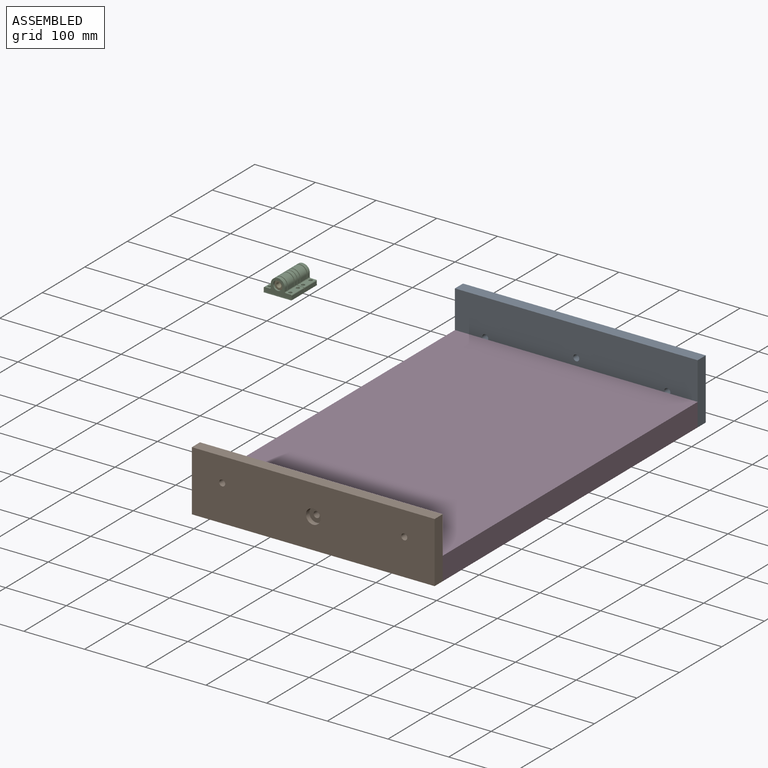
[diagram: assembled view]
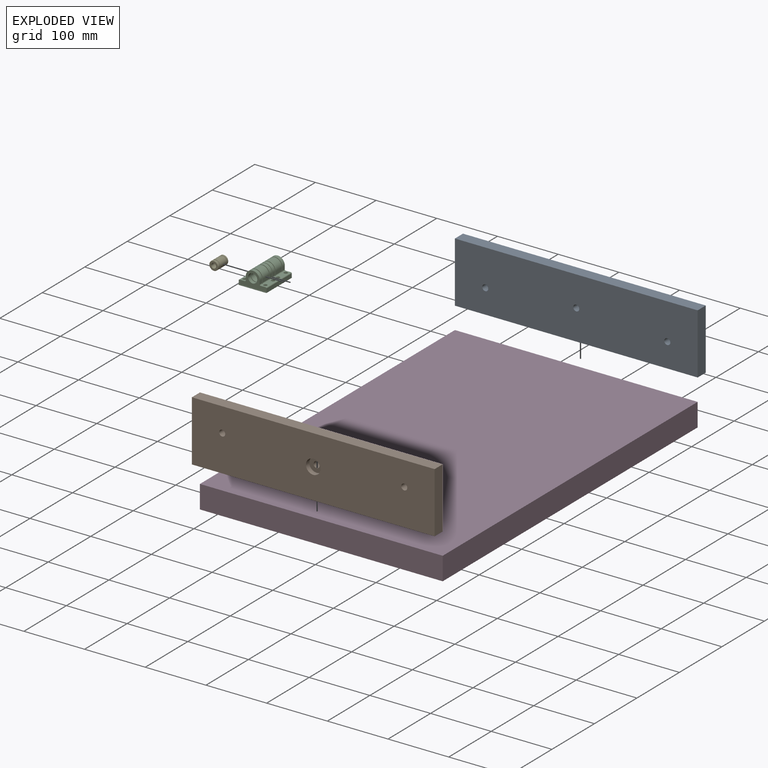
[diagram: exploded view]
GUIDED TOUR — MATED ASSEMBLY (Onshape document 6166882380b43132c298e821, AutoMate assembly 6166882380b43132c298e821_aef378e9cac27895e10c5213_9315c864bf5256e8a8b74294_default)

This assembly has 5 components, labeled P0..P4 below (a component is one placed occurrence of a part; the same part can appear more than once), held together by 7 mates. A mate is a constraint between two components; its type names the relative motion it leaves free:
  CYLINDRICAL — leaves both rotation about and translation along the listed axis free,
  PLANAR — leaves sliding in the plane through the listed point (normal = the listed direction) and rotation about that normal free.
Axis/direction vectors are unit vectors and 'through' points are millimeter coordinates, both in the assembly's world frame.

MATES
  1. PLANAR "Planar 4": P3 <-> P1, direction (0.000, 0.000, -1.000) through (186.77, 233.18, 56.05) mm
  2. CYLINDRICAL "Cylindrical 1": P4 <-> P2, axis (0.000, -1.000, 0.000) through (-55.90, 191.72, 284.49) mm
  3. PLANAR "Planar 3": P0 <-> P3, direction (0.000, 0.000, -1.000) through (186.77, 542.68, 56.05) mm
  4. PLANAR "Planar 5": P3 <-> P1, direction (1.000, 0.000, 0.000) through (386.77, 233.18, 75.05) mm
  5. PLANAR "Planar 2": P3 <-> P0, direction (1.000, 0.000, 0.000) through (386.77, 533.18, 75.05) mm
  6. PLANAR "Planar 6": P3 <-> P1, direction (0.000, -1.000, 0.000) through (186.77, -66.82, 75.05) mm
  7. PLANAR "Planar 1": P0 <-> P3, direction (0.000, -1.000, 0.000) through (186.77, 533.18, 56.05) mm

ASSEMBLY ORDER
  1. P2 — the base component [order heuristic]
  2. P4 — core [order heuristic]
  3. P3 [order verified]
  4. P0 [order verified]
  5. P1 [order verified]
Order-tag legend:
  [order verified] — this step's position reverses a verified removal order: the component was checked to insert without passing through the ones already placed.
  [order heuristic] — the first 2 components form the assembly's core: parts whose collision-free extraction could not be verified, listed in mate-graph order.

Of the 5 components, 1 carries the full construction recipe — the FeatureScript program that regenerates the part's solid from scratch; the rest are supplied as boundary geometry only.
Each toured component is shown spotlighted twice — in the assembled view, then in the exploded view, where a leader line traces a displaced component back to its assembled socket (saturated green if recipe-attached, orange if geometry-only; every other component desaturated gray) — followed by its recipe or geometry summary and the mates that hold it.
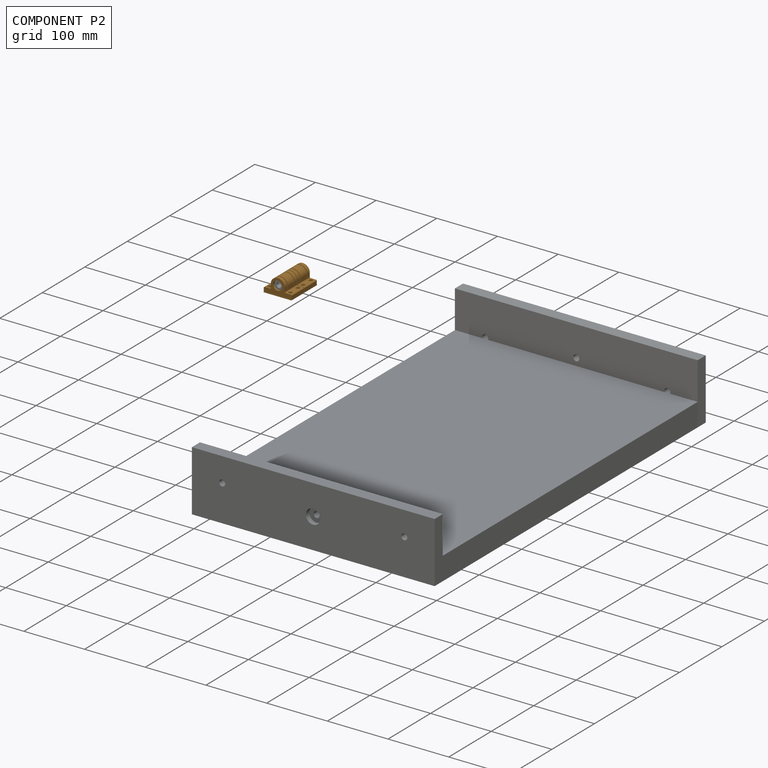
[diagram: component P2 — assembled]
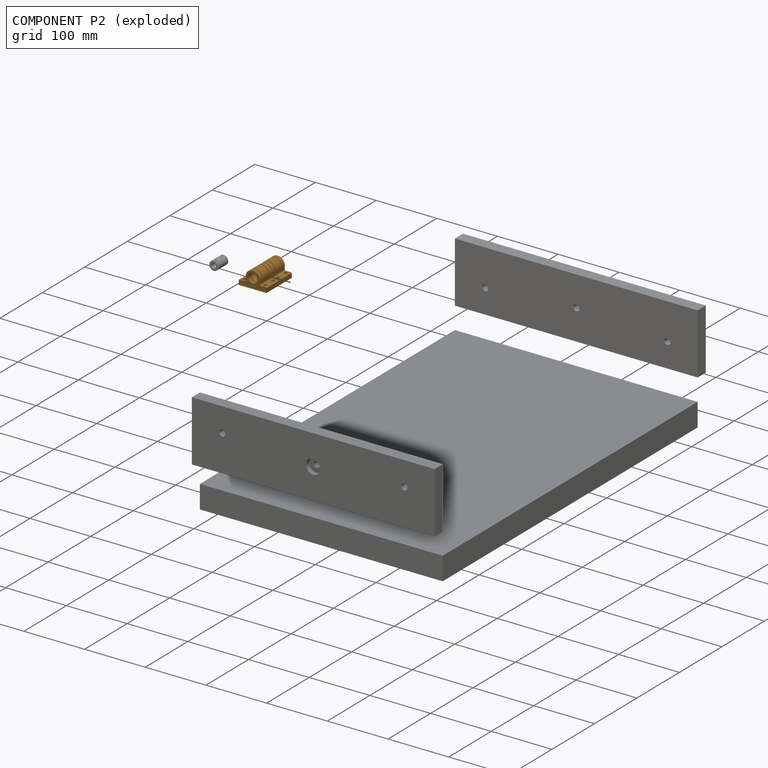
[diagram: component P2 — exploded]
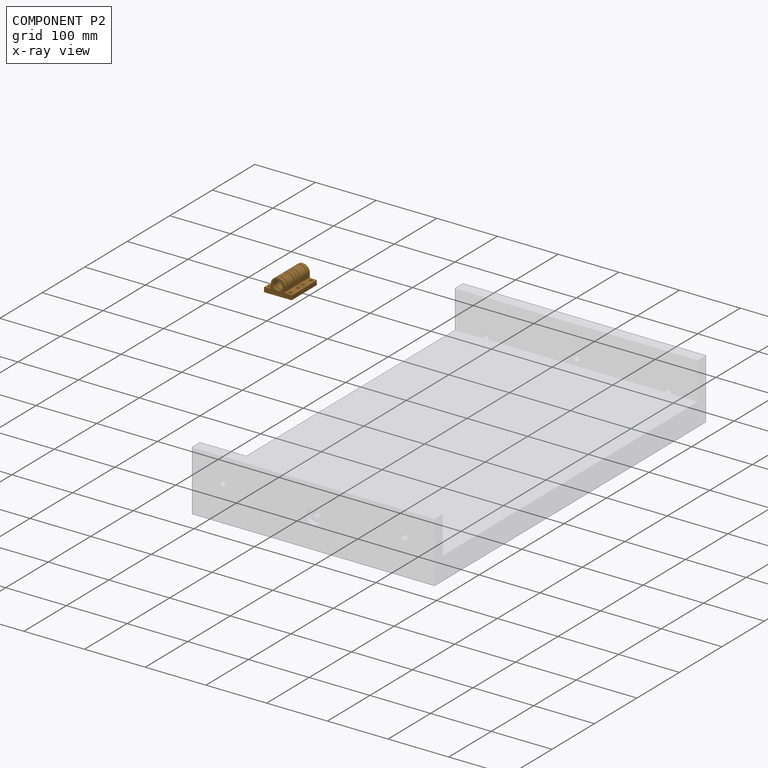
[diagram: component P2 — x-ray view]
COMPONENT P2 — geometry summary (no construction recipe available for this part):
  bounding box: 60.0 x 46.0 x 27.1 mm
  B-rep topology: 1 solid, 128 faces, 732 edges
  volume: 29956 mm^3 (40% of its bounding box)
  symmetry: 2-fold rotationally symmetric about the z axis; mirror-symmetric across its x mid-plane, y mid-plane
Held by: CYLINDRICAL mate "Cylindrical 1" to P4.
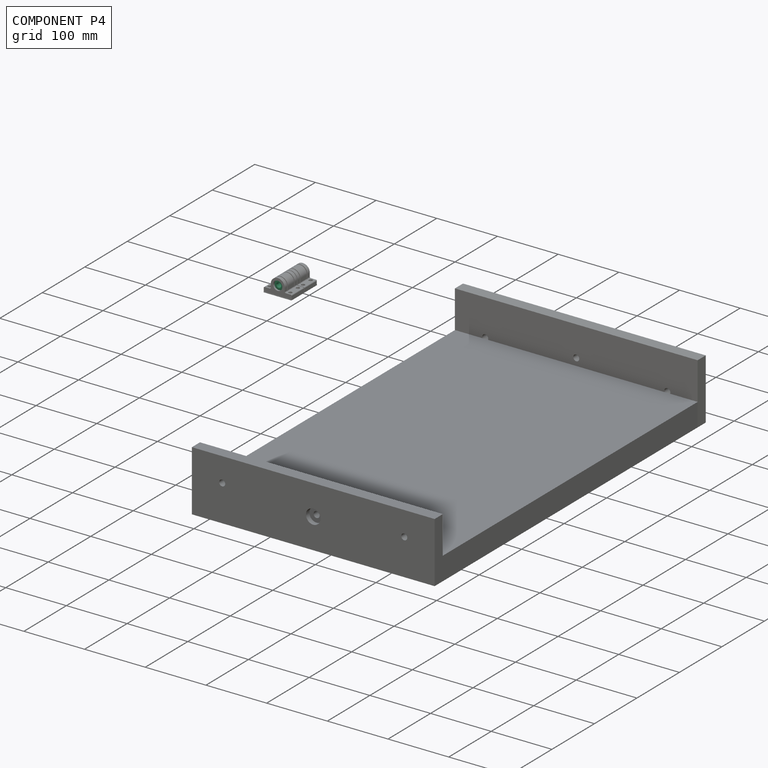
[diagram: component P4 — assembled]
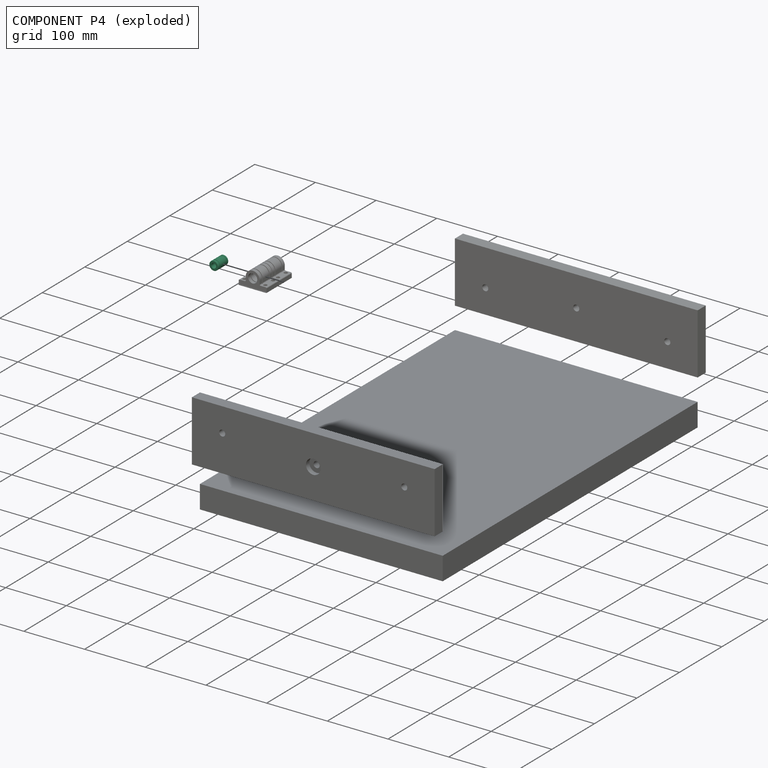
[diagram: component P4 — exploded]
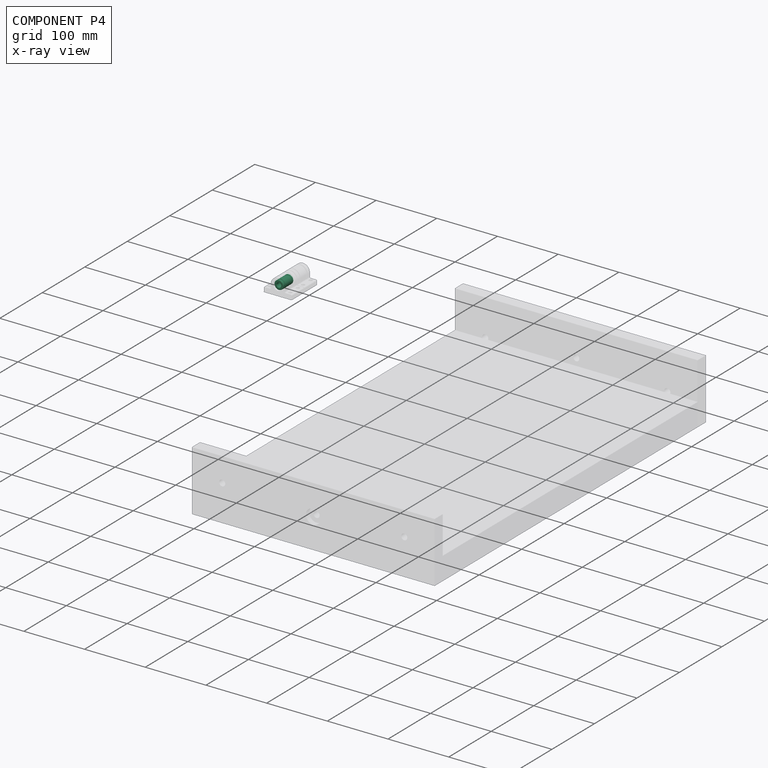
[diagram: component P4 — x-ray view]
COMPONENT P4 — recipe-attached (CADFS 00139081, mesh-verified: the recipe's output STEP matches this component's geometry to below the mesh-comparison resolution (tessellation chordal tolerance ~0.048 mm)).
Held by: CYLINDRICAL mate "Cylindrical 1" to P2.
Construction recipe (FeatureScript — the CAD program that rebuilds this solid; sketch coordinates are in the units given by the * unit suffixes, e.g. mm):

FeatureScript 2615;
import(path : "onshape/std/geometry.fs", version : "2615.0");
import(path : "onshape/std/common.fs", version : "2615.0");
const mm = millimeter;
const VERTEX = EntityType.VERTEX;
const EDGE = EntityType.EDGE;
const FACE = EntityType.FACE;
const BODY = EntityType.BODY;
function v(x, y){return vector(x, y);}
function OD(order){return orderDisambiguation(order);}
function OSD(set){return originalSetDisambiguation(set);}
function TD(topology){return topologyDisambiguation(topology);}
function TDD(query){return trueDependencyDisambiguation(query);}
function sQuery(a, b, c) {return sketchEntityQuery(a, b, c);}

annotation { "Feature Type Name" : "Feature", "Feature Type Description" : "" }
export const myFeature = defineFeature(function(context is Context, id is Id, definition is map)
    precondition{}
    {
        {
            var Q0;
            Q0=qCreatedBy(makeId("Right.planeOp"),FACE);
            var sketch = newSketch(context, id + "F0", { "sketchPlane" : qUnion([Q0])});
            skLineSegment(sketch, "E0", {"start": v(0, 0) * mm, "end": v(0, 4) * mm, "construction": true});
            skLineSegment(sketch, "E1", {"start": v(0, 4) * mm, "end": v(12, 4) * mm});
            skLineSegment(sketch, "E2", {"start": v(0, 4) * mm, "end": v(0, 7.5) * mm});
            skLineSegment(sketch, "E3", {"start": v(0, 7.5) * mm, "end": v(7.45, 7.5) * mm});
            skLineSegment(sketch, "E4", {"start": v(7.45, 7.5) * mm, "end": v(7.45, 7) * mm});
            skLineSegment(sketch, "E5", {"start": v(7.45, 7) * mm, "end": v(8.75, 7) * mm});
            skLineSegment(sketch, "E6", {"start": v(8.75, 7) * mm, "end": v(8.75, 7.5) * mm});
            skLineSegment(sketch, "E7", {"start": v(8.75, 7.5) * mm, "end": v(12, 7.5) * mm});
            skLineSegment(sketch, "E8", {"start": v(12, 7.5) * mm, "end": v(12, 4) * mm});
            skLineSegment(sketch, "E9", {"start": v(8.75, 7.5) * mm, "end": v(7.45, 7.5) * mm, "construction": true});
            skLineSegment(sketch, "E10", {"start": v(0, 0) * mm, "end": v(13.51, 0) * mm, "construction": true});
            skSolve(sketch);
        }
        {
            var Q0;
            Q0=makeQuery(id+"F0.imprint","IMPRINT",FACE,{"disambiguationData":[TD([[makeQuery(id+"F0.imprint","IMPRINT",EDGE,{"derivedFrom":sQuery(id+"F0.wireOp",EDGE,"E1")}),1.0]])]});
            var Q1;
            Q1=sQuery(id+"F0.wireOp",EDGE,"E10");
            revolve(context, id + "F1", {"entities" : qUnion([Q0]), "axis" : qUnion([Q1]), "revolveType" : RevolveType.FULL});
        }
        {
            var Q0;
            Q0=makeQuery(id+"F1.opRevolve","SWEPT_EDGE",EDGE,{"disambiguationData":[OSD([sQuery(id+"F0.wireOp",EDGE,"E7"),sQuery(id+"F0.wireOp",EDGE,"E8")])]});
            chamfer(context, id + "F2", {"entities" : qUnion([Q0]), "width" : 0.5 * mm, "tangentPropagation" : true});
        }
        {
            var Q0;
            Q0=makeQuery(id+"F1.opRevolve","SWEPT_BODY",BODY,{"disambiguationData":[OSD([sQuery(id+"F0.wireOp",EDGE,"E1"),sQuery(id+"F0.wireOp",EDGE,"E2"),sQuery(id+"F0.wireOp",EDGE,"E3"),sQuery(id+"F0.wireOp",EDGE,"E4"),sQuery(id+"F0.wireOp",EDGE,"E5"),sQuery(id+"F0.wireOp",EDGE,"E6"),sQuery(id+"F0.wireOp",EDGE,"E7"),sQuery(id+"F0.wireOp",EDGE,"E8")])]});
            var Q1;
            Q1=makeQuery(id+"F1.opRevolve","SWEPT_FACE",FACE,{"disambiguationData":[OSD([sQuery(id+"F0.wireOp",EDGE,"E2")])]});
            mirror(context, id + "F3", {"operationType" : NewBodyOperationType.ADD, "entities" : qUnion([Q0]), "mirrorPlane" : qUnion([Q1])});
        }
    });
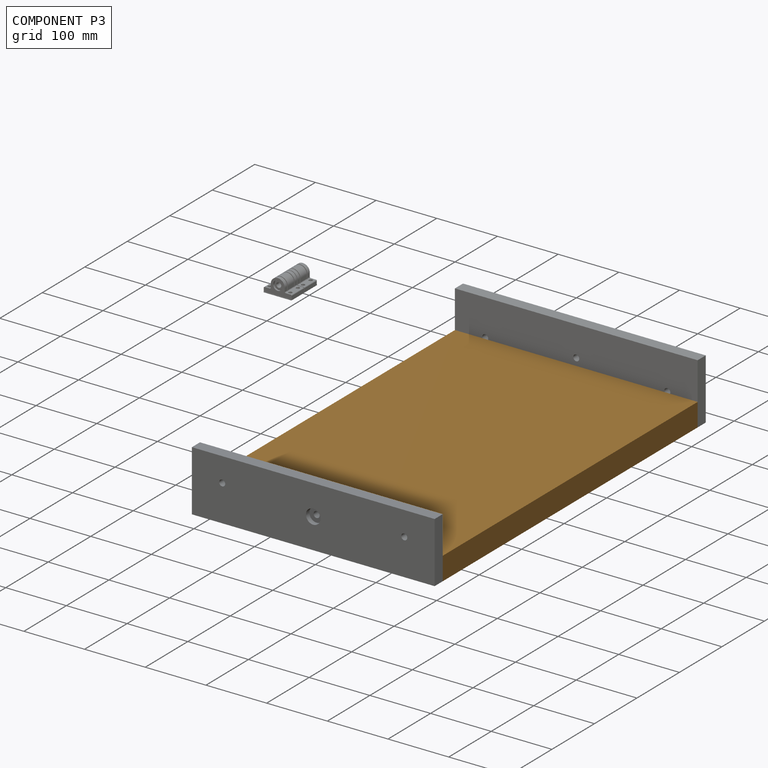
[diagram: component P3 — assembled]
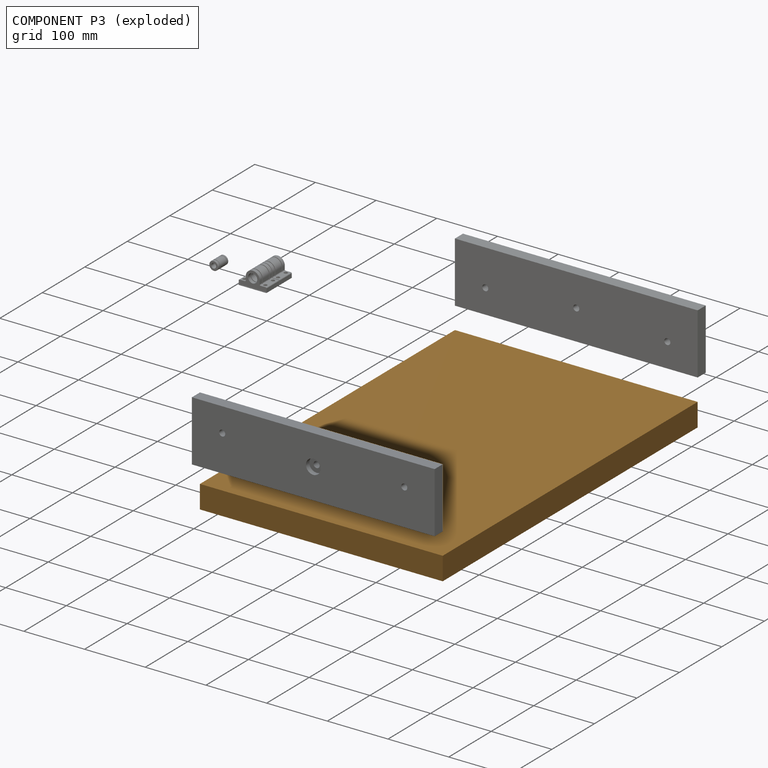
[diagram: component P3 — exploded]
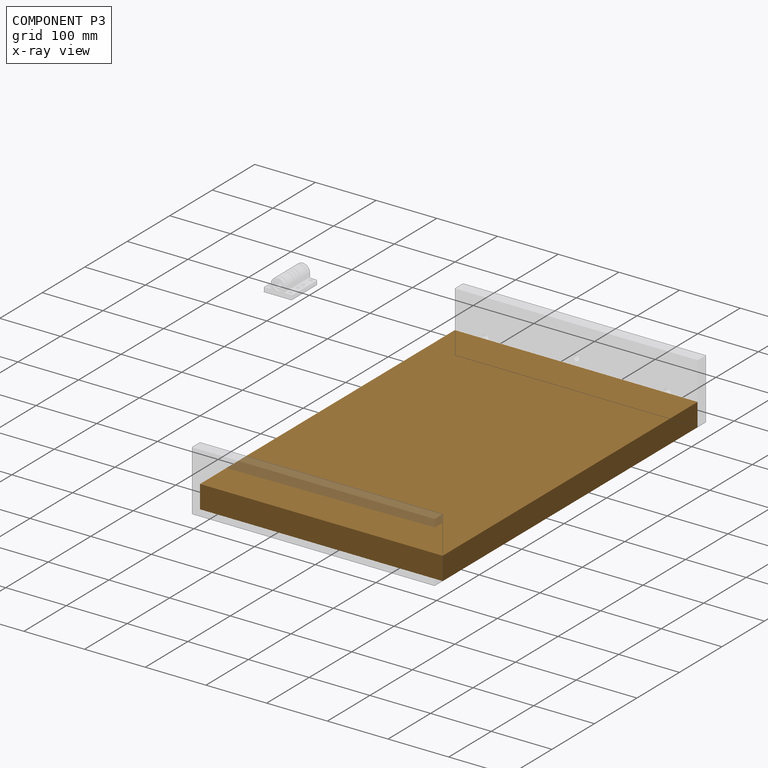
[diagram: component P3 — x-ray view]
COMPONENT P3 — geometry summary (no construction recipe available for this part):
  bounding box: 600.0 x 400.0 x 38.0 mm
  B-rep topology: 1 solid, 6 faces, 24 edges
  volume: 9120000 mm^3 (100% of its bounding box)
  symmetry: 2-fold rotationally symmetric about the x axis; 2-fold rotationally symmetric about the y axis; 2-fold rotationally symmetric about the z axis; mirror-symmetric across its x mid-plane, y mid-plane, z mid-plane
Held by: PLANAR mate "Planar 4" to P1; PLANAR mate "Planar 3" to P0; PLANAR mate "Planar 5" to P1; PLANAR mate "Planar 2" to P0; PLANAR mate "Planar 6" to P1; PLANAR mate "Planar 1" to P0.
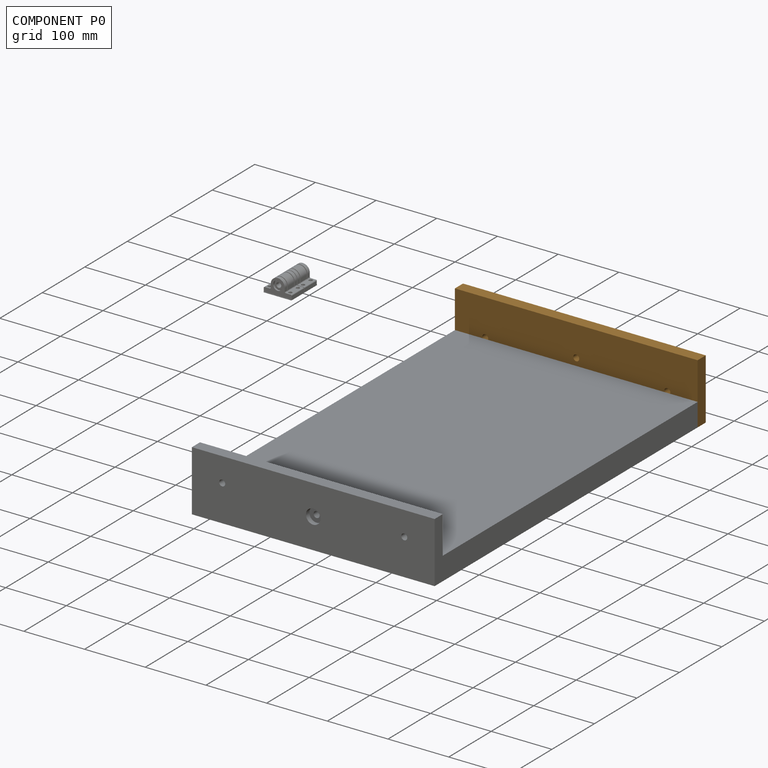
[diagram: component P0 — assembled]
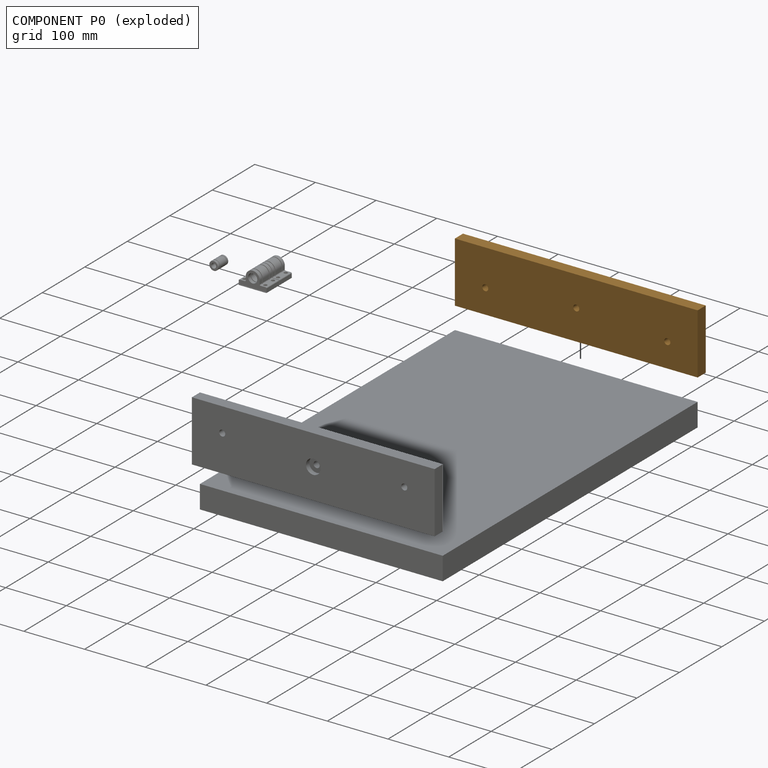
[diagram: component P0 — exploded]
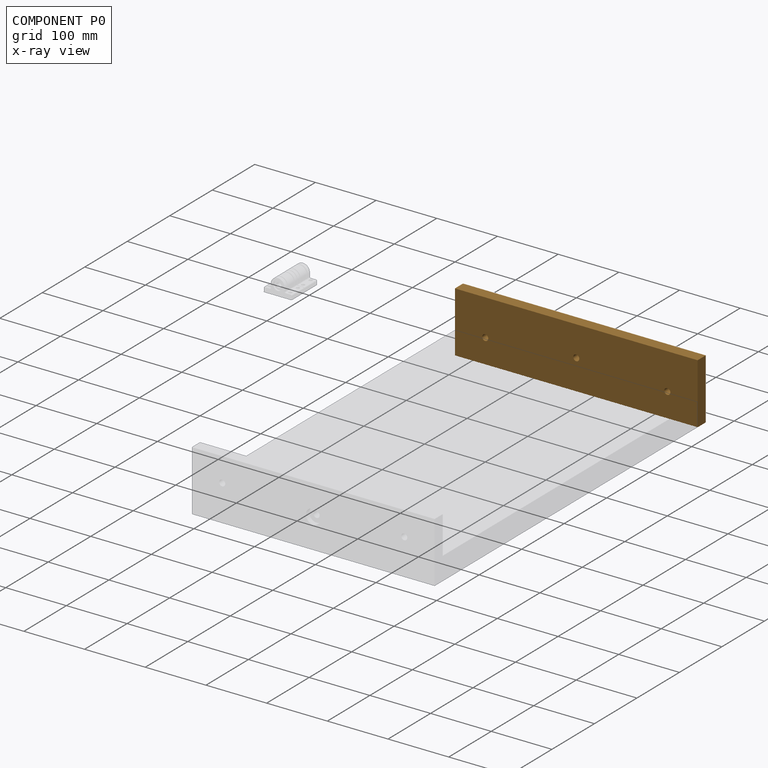
[diagram: component P0 — x-ray view]
COMPONENT P0 — geometry summary (no construction recipe available for this part):
  bounding box: 400.0 x 100.0 x 19.0 mm
  B-rep topology: 1 solid, 11 faces, 52 edges
  volume: 752532 mm^3 (99% of its bounding box)
  symmetry: mirror-symmetric across its x mid-plane
Held by: PLANAR mate "Planar 3" to P3; PLANAR mate "Planar 2" to P3; PLANAR mate "Planar 1" to P3.
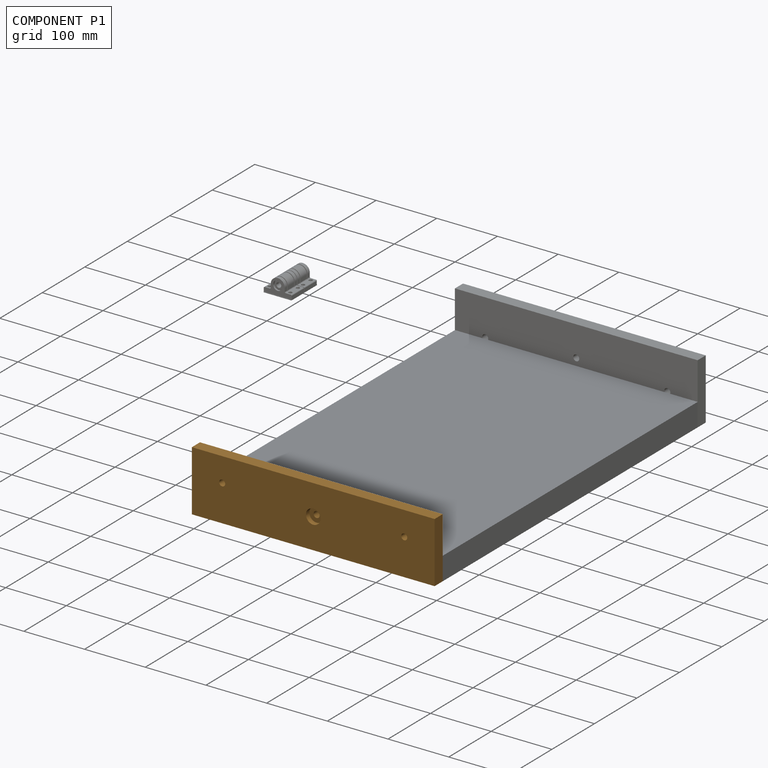
[diagram: component P1 — assembled]
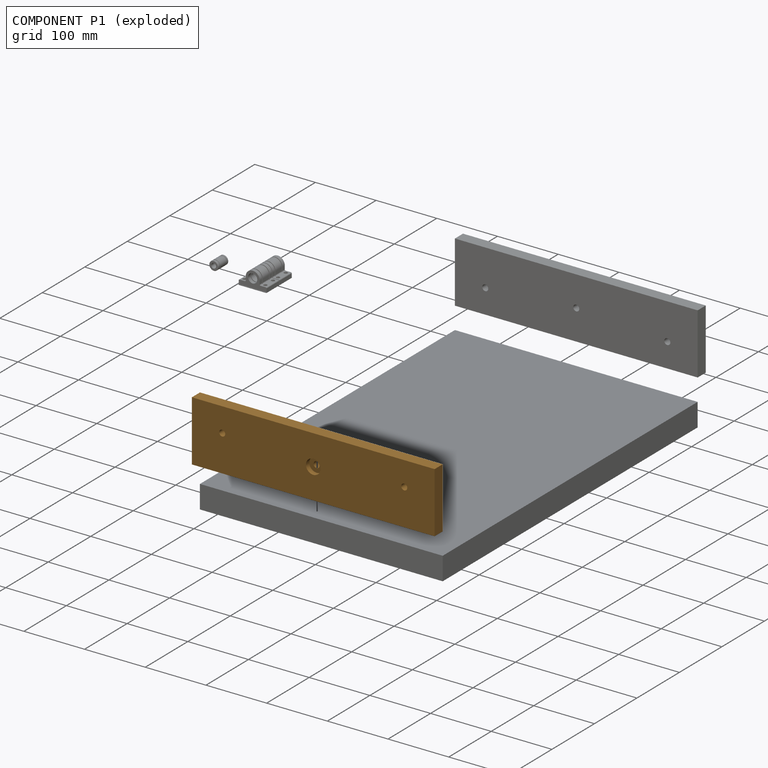
[diagram: component P1 — exploded]
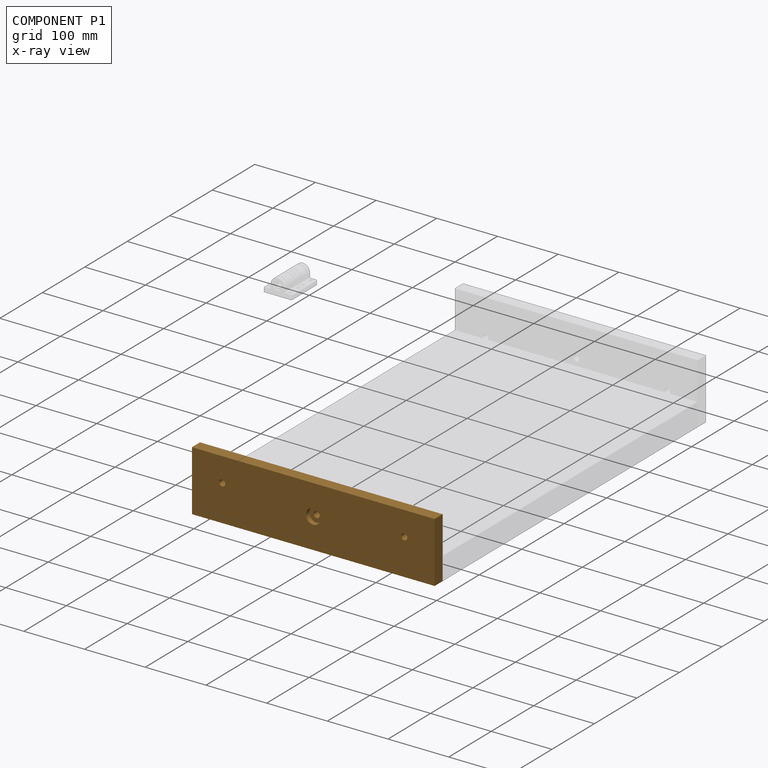
[diagram: component P1 — x-ray view]
COMPONENT P1 — geometry summary (no construction recipe available for this part):
  bounding box: 400.0 x 100.0 x 19.0 mm
  B-rep topology: 1 solid, 11 faces, 52 edges
  volume: 752532 mm^3 (99% of its bounding box)
  symmetry: mirror-symmetric across its x mid-plane
Held by: PLANAR mate "Planar 4" to P3; PLANAR mate "Planar 5" to P3; PLANAR mate "Planar 6" to P3.
PROVENANCE & LICENSES
Assembly (occurrences, transforms, mates, per-part STEP geometry): AutoMate dataset, Zenodo record 7776208, CC0.
Construction recipes: CADFS (HuggingFace VladPyatov/CADFS, CC-BY-4.0, layered over the ABC dataset), FeatureScript reconstruction programs keyed by ABC model id.
Join: ABC meta listings map ABC model id -> Onshape documentId; within a shared document, parts are matched by geometric signature (bounding-box dims + volume at 0.1% relative tolerance, exact B-rep face/solid counts).
Verification: 1 of this assembly's 5 components carries a recipe attachment, and every attachment is mesh-verified: the CADFS STEP and the AutoMate member STEP were compared as meshes in their shared local frame (symmetric sampled-point-to-mesh distance); worst across the 1 attachment: below the mesh-comparison resolution (tessellation chordal tolerance ~0.048 mm) on a 32 mm part.
Renders: orthographic iso camera (az 35 / el 25); the floor grid conveys scale (grid pitch printed in each image; no ruler). In the exploded view each component is displaced by its stored offset vector: the offsets alone carry the explosion direction (mate normal/axis signs are not orientation cues and do not encode it), and separation distances are assigned per mate-chain, not proportionally to assembly-order depth.
